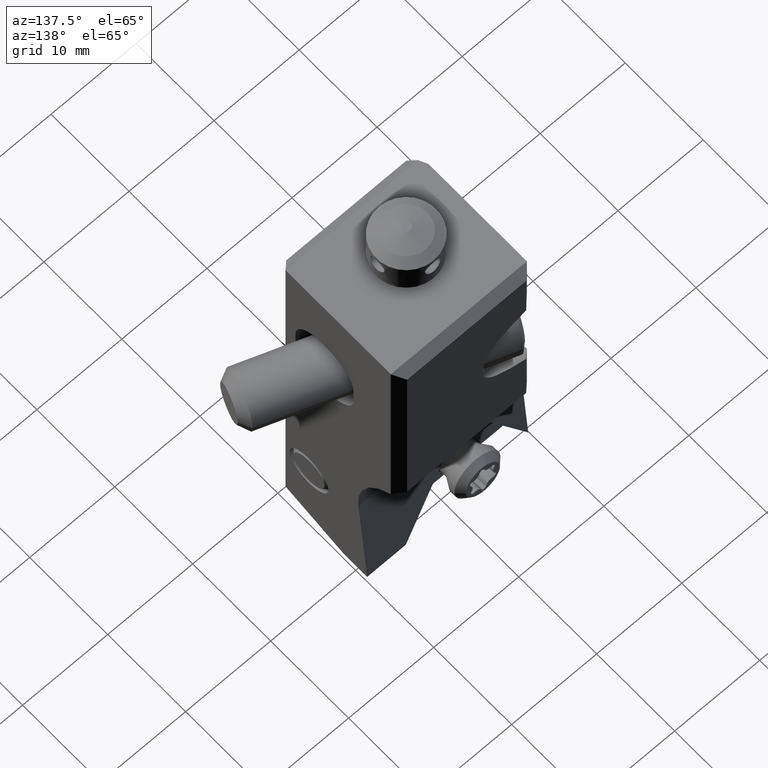
[diagram: clean part render]
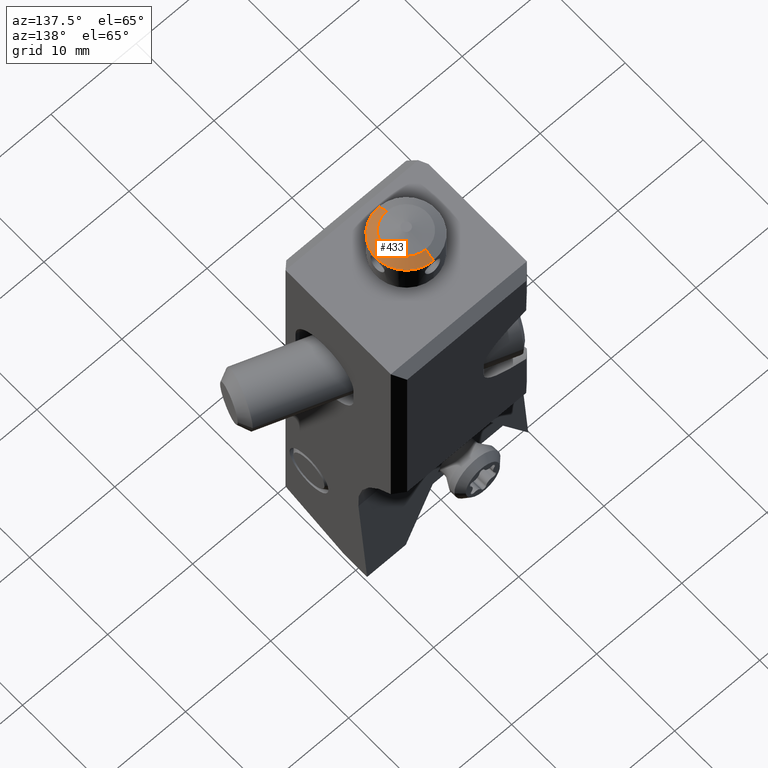
[diagram: same view with one face highlighted and labeled with its STEP entity id]
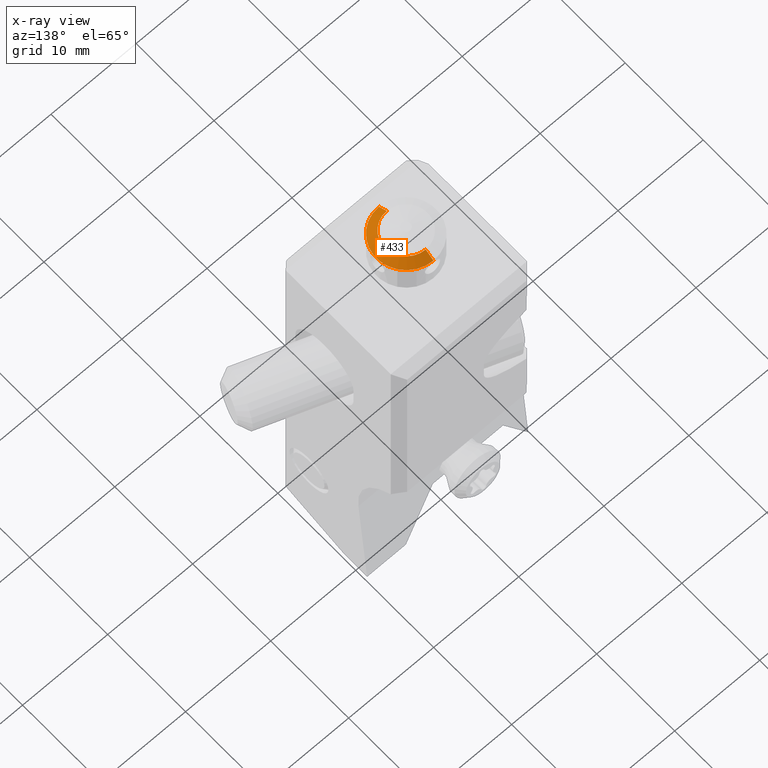
[diagram: x-ray of the same camera — body ghosted, the highlighted face saturated]
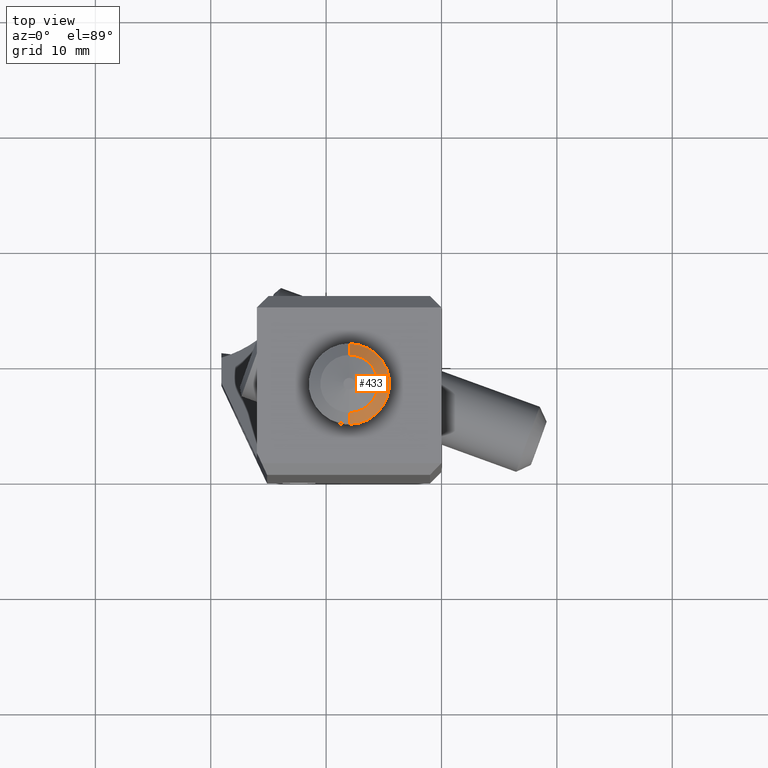
[diagram: same view with one face highlighted and labeled with its STEP entity id]
A machine part, auxiliary view. The second image highlights one B-rep face of the part: STEP entity #433.
The next image is the same camera in x-ray: the body ghosted, the highlighted face saturated — about 0% of this face is hidden behind the body in this view.
A second angle (top view) of the same face is appended — the face is thin or edge-on in the first view.
In plain terms, the highlighted conical surface has half-angle 55 deg.
Its self-contained STEP definition (entity closure, byte-faithful):
#120=CONICAL_SURFACE('',#2836,3.,55.);
#301=CIRCLE('',#2834,2.5);
#302=CIRCLE('',#2835,3.5);
#433=ADVANCED_FACE('',(#614),#120,.T.);
#614=FACE_OUTER_BOUND('',#761,.T.);
#761=EDGE_LOOP('',(#1278,#1279,#1280,#1281));
#1278=ORIENTED_EDGE('',*,*,#2052,.T.);
#1279=ORIENTED_EDGE('',*,*,#2053,.T.);
#1280=ORIENTED_EDGE('',*,*,#2050,.T.);
#1281=ORIENTED_EDGE('',*,*,#2054,.F.);
#1730=VERTEX_POINT('',#4303);
#1737=VERTEX_POINT('',#4401);
#1740=VERTEX_POINT('',#4469);
#1741=VERTEX_POINT('',#4471);
#2050=EDGE_CURVE('',#1740,#1737,#2311,.T.);
#2052=EDGE_CURVE('',#1730,#1741,#2312,.T.);
#2053=EDGE_CURVE('',#1741,#1740,#301,.T.);
#2054=EDGE_CURVE('',#1730,#1737,#302,.T.);
#2311=LINE('',#4468,#2485);
#2312=LINE('',#4472,#2486);
#2485=VECTOR('',#3457,1.);
#2486=VECTOR('',#3460,1.);
#2834=AXIS2_PLACEMENT_3D('',#4474,#3463,#3464);
#2835=AXIS2_PLACEMENT_3D('',#4475,#3465,#3466);
#2836=AXIS2_PLACEMENT_3D('',#4476,#3467,#3468);
#3457=DIRECTION('',(0.,-0.819152044289016,-0.573576436351011));
#3460=DIRECTION('',(0.,-0.819152044289016,0.573576436351011));
#3463=DIRECTION('',(0.,0.,-1.));
#3464=DIRECTION('',(0.,1.,0.));
#3465=DIRECTION('',(0.,0.,-1.));
#3466=DIRECTION('',(0.,1.,0.));
#3467=DIRECTION('',(0.,0.,-1.));
#3468=DIRECTION('',(0.,1.,-1.03030221027725E-17));
#4303=CARTESIAN_POINT('',(-8.,11.25,6.571851993258));
#4401=CARTESIAN_POINT('',(-8.,4.25,6.571851993258));
#4468=CARTESIAN_POINT('',(-8.,5.25,7.272059531468));
#4469=CARTESIAN_POINT('',(-8.,5.25,7.272059531468));
#4471=CARTESIAN_POINT('',(-8.,10.25,7.272059531468));
#4472=CARTESIAN_POINT('',(-8.,11.25,6.571851993258));
#4474=CARTESIAN_POINT('',(-8.,7.75,7.272059531468));
#4475=CARTESIAN_POINT('',(-8.,7.75,6.571851993258));
#4476=CARTESIAN_POINT('',(-8.,7.75,6.921955762363));